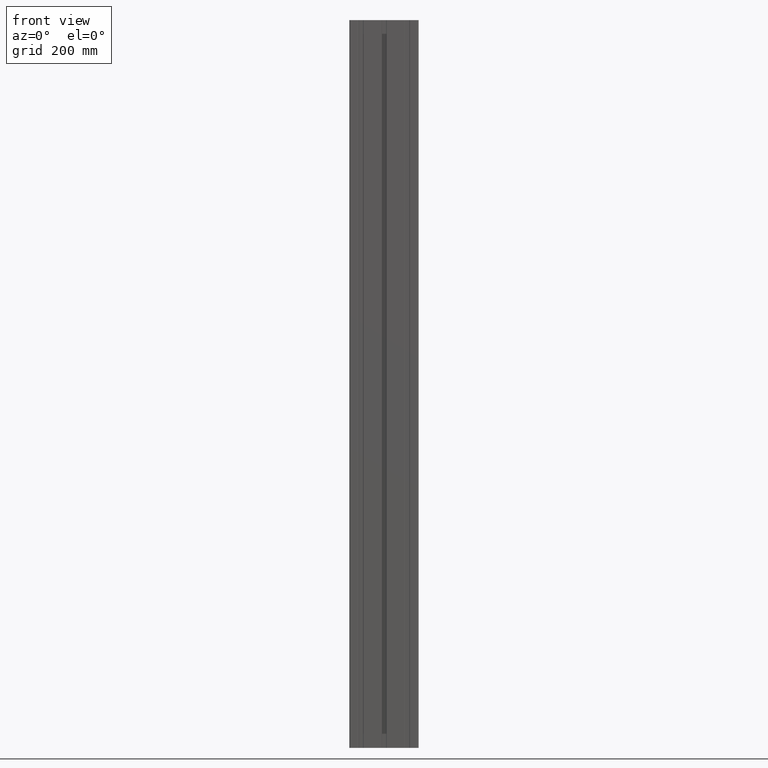
[diagram: clean part render]
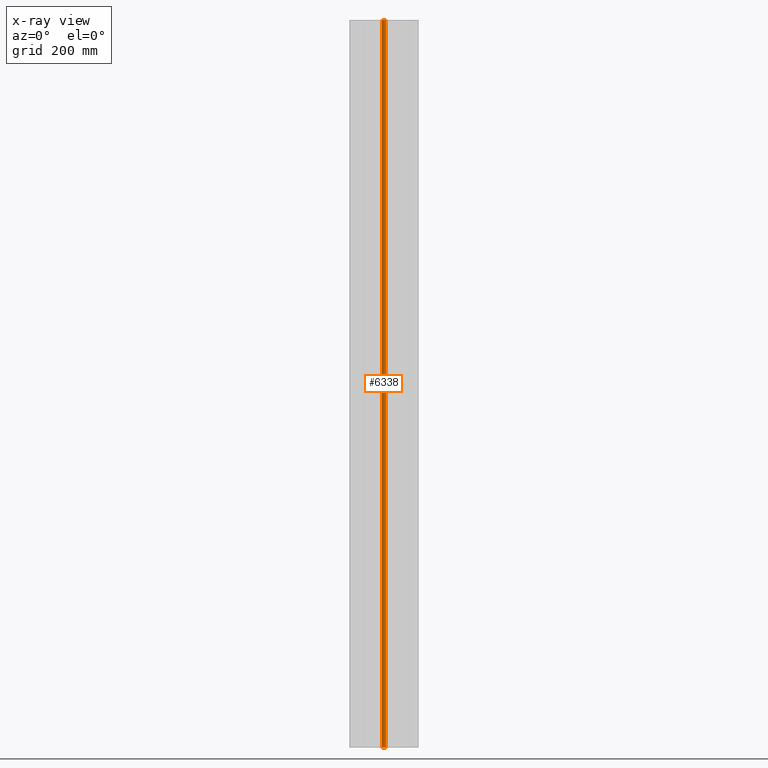
[diagram: x-ray — body ghosted, one internal face saturated and labeled with its STEP entity id]
A machine part, front view, then the same camera in x-ray: the body is ghosted and one INTERNAL B-rep face — a face not visible from any outside direction — is saturated and labeled: STEP entity #6338.
In plain terms, the highlighted cylindrical surface (bore or boss wall) has radius 3.4 mm, axis along (0, 0, -1).
Its self-contained STEP definition (entity closure, byte-faithful):
#476=FACE_OUTER_BOUND('',#795,.T.);
#795=EDGE_LOOP('',(#5547,#5548,#5549,#5550));
#1409=LINE('',#10521,#2020);
#2020=VECTOR('',#8710,3.3999932);
#2133=CIRCLE('',#6479,3.3999932);
#2278=CIRCLE('',#6846,3.3999932);
#2536=VERTEX_POINT('',#9190);
#2840=VERTEX_POINT('',#10241);
#3135=EDGE_CURVE('',#2536,#2536,#2133,.T.);
#3660=EDGE_CURVE('',#2840,#2840,#2278,.T.);
#3801=EDGE_CURVE('',#2840,#2536,#1409,.T.);
#5547=ORIENTED_EDGE('',*,*,#3660,.F.);
#5548=ORIENTED_EDGE('',*,*,#3801,.T.);
#5549=ORIENTED_EDGE('',*,*,#3135,.F.);
#5550=ORIENTED_EDGE('',*,*,#3801,.F.);
#5741=CYLINDRICAL_SURFACE('',#6948,3.3999932);
#6338=ADVANCED_FACE('',(#476),#5741,.F.);
#6479=AXIS2_PLACEMENT_3D('',#9191,#7289,#7290);
#6846=AXIS2_PLACEMENT_3D('',#10242,#8403,#8404);
#6948=AXIS2_PLACEMENT_3D('',#10520,#8708,#8709);
#7289=DIRECTION('center_axis',(0.,0.,1.));
#7290=DIRECTION('ref_axis',(-1.,0.,0.));
#8403=DIRECTION('center_axis',(0.,0.,-1.));
#8404=DIRECTION('ref_axis',(-1.,0.,0.));
#8708=DIRECTION('center_axis',(0.,0.,-1.));
#8709=DIRECTION('ref_axis',(1.,0.,0.));
#8710=DIRECTION('',(0.,0.,-1.));
#9190=CARTESIAN_POINT('',(-43.3999132,4.16379078950277E-16,0.));
#9191=CARTESIAN_POINT('Origin',(-39.99992,0.,0.));
#10241=CARTESIAN_POINT('',(-43.3999132,4.16379078950277E-16,1260.));
#10242=CARTESIAN_POINT('Origin',(-39.99992,0.,1260.));
#10520=CARTESIAN_POINT('Origin',(-39.99992,0.,0.));
#10521=CARTESIAN_POINT('',(-43.3999132,4.16379078950277E-16,0.));